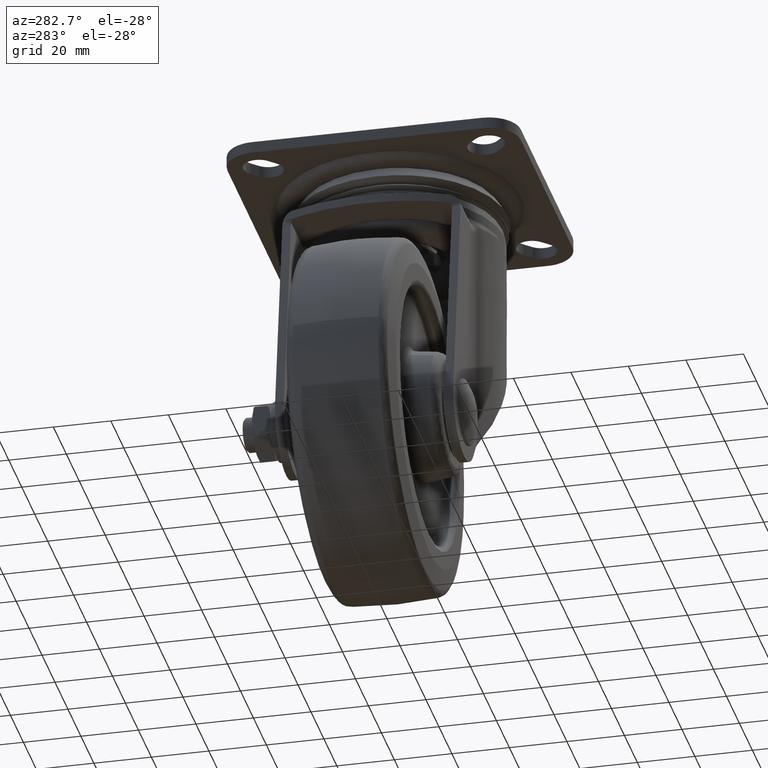
[diagram: clean part render]
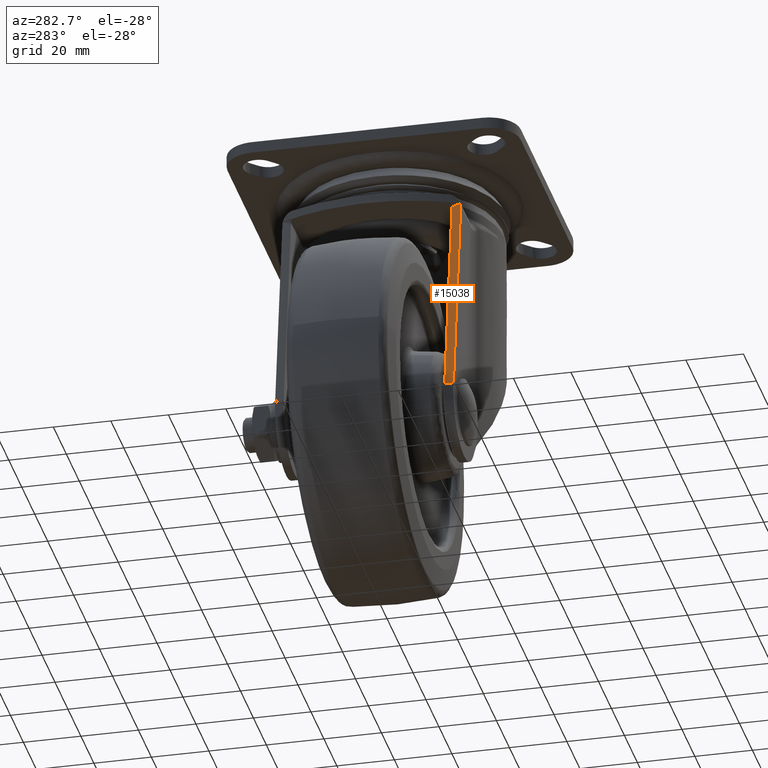
[diagram: same view with one face highlighted and labeled with its STEP entity id]
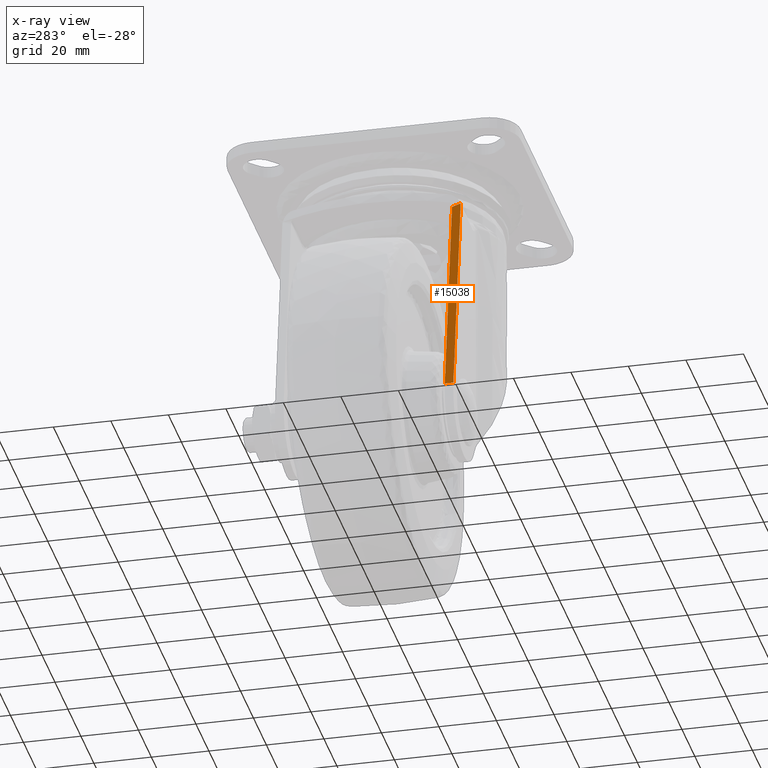
[diagram: x-ray of the same camera — body ghosted, the highlighted face saturated]
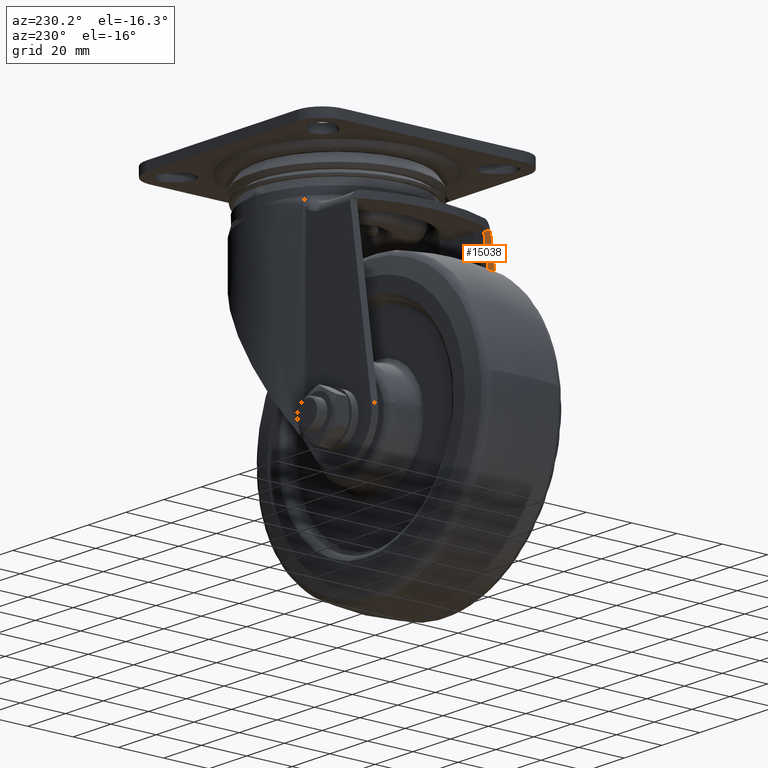
[diagram: same view with one face highlighted and labeled with its STEP entity id]
A machine part, auxiliary view. The second image highlights one B-rep face of the part: STEP entity #15038.
The next image is the same camera in x-ray: the body ghosted, the highlighted face saturated — about 0% of this face is hidden behind the body in this view.
A second angle (auxiliary view) of the same face is appended — the face is thin or edge-on in the first view.
In plain terms, the highlighted face is a freeform B-spline surface patch.
Its self-contained STEP definition (entity closure, byte-faithful):
#14012=CARTESIAN_POINT('',(-44.026335102572553,-31.0,-29.099989999999998));
#14013=VERTEX_POINT('',#14012);
#14014=CARTESIAN_POINT('',(-43.881650005281649,-30.884173853099249,-28.144378426765549));
#14015=VERTEX_POINT('',#14014);
#14016=CARTESIAN_POINT('',(-44.026335102572553,-31.0,-29.099989999999998));
#14017=CARTESIAN_POINT('',(-43.952929771849639,-30.999999999999996,-28.615164783793457));
#14018=CARTESIAN_POINT('',(-43.881650005281649,-30.884173853099249,-28.144378426765549));
#14026=(BOUNDED_CURVE()B_SPLINE_CURVE(2,(#14016,#14017,#14018),.UNSPECIFIED.,.F.,.U.)CURVE()GEOMETRIC_REPRESENTATION_ITEM()QUASI_UNIFORM_CURVE()RATIONAL_B_SPLINE_CURVE((1.0,0.992734471869205,1.0))REPRESENTATION_ITEM(''));
#14027=EDGE_CURVE('',#14013,#14015,#14026,.T.);
#14753=CARTESIAN_POINT('',(-43.965325248460559,-29.442086926549599,-28.697034037275280));
#14754=VERTEX_POINT('',#14753);
#14755=CARTESIAN_POINT('',(-44.049000491639447,-28.0,-29.249689647784852));
#14756=VERTEX_POINT('',#14755);
#14757=CARTESIAN_POINT('',(-43.965325248460573,-29.442086926549599,-28.697034037275280));
#14758=CARTESIAN_POINT('',(-43.993216996186860,-28.961391284366400,-28.881252574111890));
#14759=CARTESIAN_POINT('',(-44.021108743913153,-28.480695642183200,-29.065471110948490));
#14760=CARTESIAN_POINT('',(-44.049000491639447,-28.0,-29.249689647784852));
#14761=B_SPLINE_CURVE_WITH_KNOTS('',3,(#14757,#14758,#14759,#14760),.UNSPECIFIED.,.F.,.U.,(4,4),(0.826898547394400,0.987130428122133),.UNSPECIFIED.);
#14762=EDGE_CURVE('',#14754,#14756,#14761,.T.);
#14764=CARTESIAN_POINT('',(-43.881650005281649,-30.884173853099249,-28.144378426765549));
#14765=CARTESIAN_POINT('',(-43.909541753007971,-30.403478210915999,-28.328596963602049));
#14766=CARTESIAN_POINT('',(-43.937433500734272,-29.922782568732799,-28.512815500438670));
#14767=CARTESIAN_POINT('',(-43.965325248460573,-29.442086926549599,-28.697034037275280));
#14768=B_SPLINE_CURVE_WITH_KNOTS('',3,(#14764,#14765,#14766,#14767),.UNSPECIFIED.,.F.,.U.,(4,4),(0.666666666666667,0.826898547394400),.UNSPECIFIED.);
#14769=EDGE_CURVE('',#14015,#14754,#14768,.T.);
#15009=CARTESIAN_POINT('',(-43.316143708391593,-31.149849994185420,-24.409340249622669));
#15010=CARTESIAN_POINT('',(-55.768604430325233,-31.149849994185420,-106.654960592976200));
#15011=CARTESIAN_POINT('',(-43.316143708391593,-27.850149925348308,-24.409340249622669));
#15012=CARTESIAN_POINT('',(-55.768604430325233,-27.850149925348308,-106.654960592976200));
#15013=B_SPLINE_SURFACE_WITH_KNOTS('',1,1,((#15009,#15011),(#15010,#15012)),.UNSPECIFIED.,.F.,.F.,.U.,(2,2),(2,2),(0.0,83.182966066943990),(0.0,3.299700068837115),.UNSPECIFIED.);
#15014=CARTESIAN_POINT('',(-55.203097829770407,-31.0,-102.919920410196990));
#15015=VERTEX_POINT('',#15014);
#15016=CARTESIAN_POINT('',(-44.026335102572553,-31.0,-29.099989999999998));
#15017=CARTESIAN_POINT('',(-55.203097829770407,-31.0,-102.919920410196990));
#15018=QUASI_UNIFORM_CURVE('',1,(#15016,#15017),.UNSPECIFIED.,.F.,.U.);
#15019=EDGE_CURVE('',#14013,#15015,#15018,.T.);
#15020=ORIENTED_EDGE('',*,*,#15019,.F.);
#15021=ORIENTED_EDGE('',*,*,#14027,.T.);
#15022=ORIENTED_EDGE('',*,*,#14769,.T.);
#15023=ORIENTED_EDGE('',*,*,#14762,.T.);
#15024=CARTESIAN_POINT('',(-55.203097829770407,-28.0,-102.919920410196990));
#15025=VERTEX_POINT('',#15024);
#15026=CARTESIAN_POINT('',(-44.049000491639447,-28.0,-29.249689647784852));
#15027=CARTESIAN_POINT('',(-55.203097829770407,-28.0,-102.919920410196990));
#15028=QUASI_UNIFORM_CURVE('',1,(#15026,#15027),.UNSPECIFIED.,.F.,.U.);
#15029=EDGE_CURVE('',#14756,#15025,#15028,.T.);
#15030=ORIENTED_EDGE('',*,*,#15029,.T.);
#15031=CARTESIAN_POINT('',(-55.203097829770407,-28.0,-102.919920410196990));
#15032=CARTESIAN_POINT('',(-55.203097829770407,-31.0,-102.919920410196990));
#15033=QUASI_UNIFORM_CURVE('',1,(#15031,#15032),.UNSPECIFIED.,.F.,.U.);
#15034=EDGE_CURVE('',#15025,#15015,#15033,.T.);
#15035=ORIENTED_EDGE('',*,*,#15034,.T.);
#15036=EDGE_LOOP('',(#15020,#15021,#15022,#15023,#15030,#15035));
#15037=FACE_OUTER_BOUND('',#15036,.T.);
#15038=ADVANCED_FACE('',(#15037),#15013,.F.);